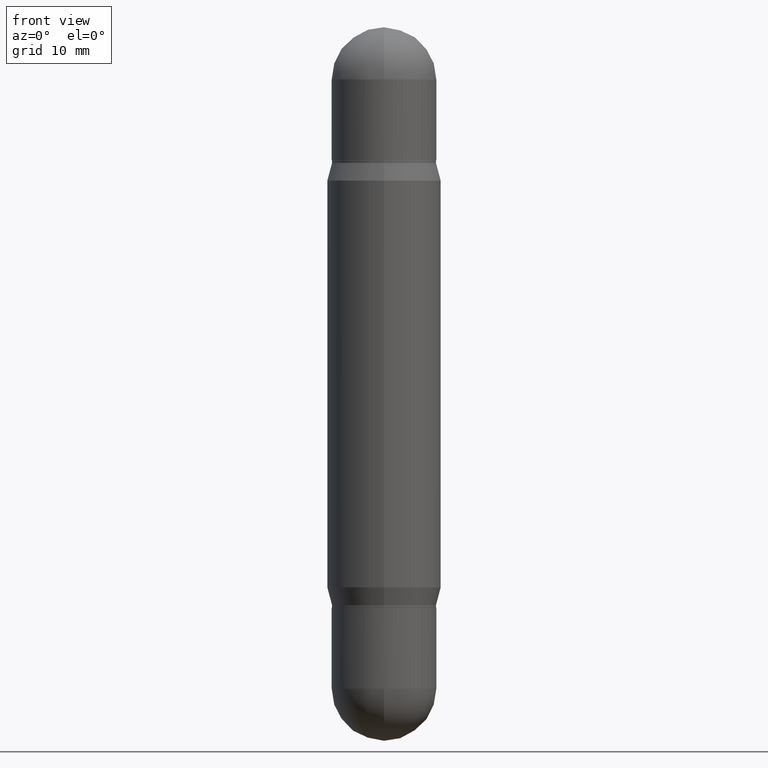
[diagram: clean part render]
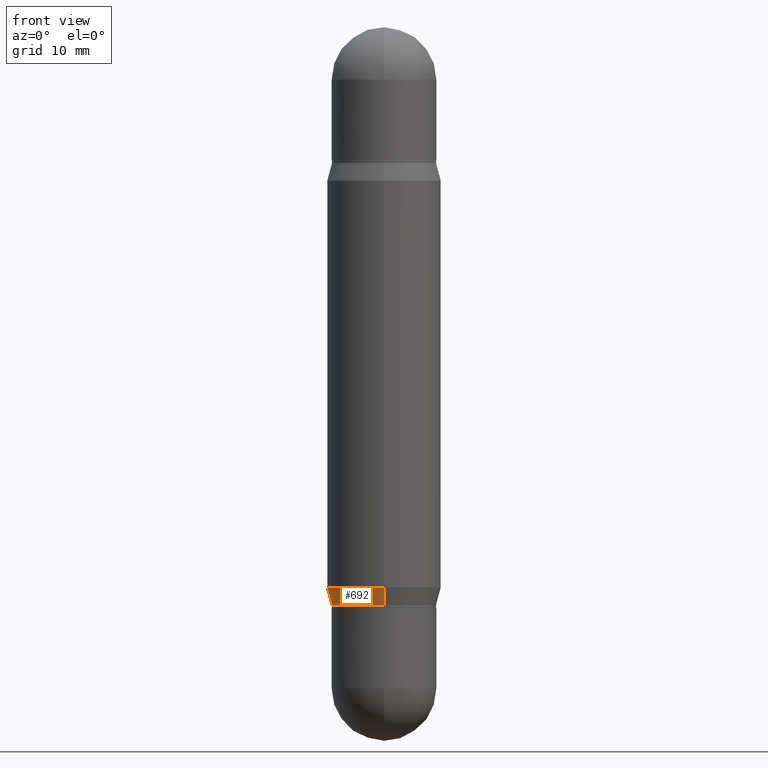
[diagram: same view with one face highlighted and labeled with its STEP entity id]
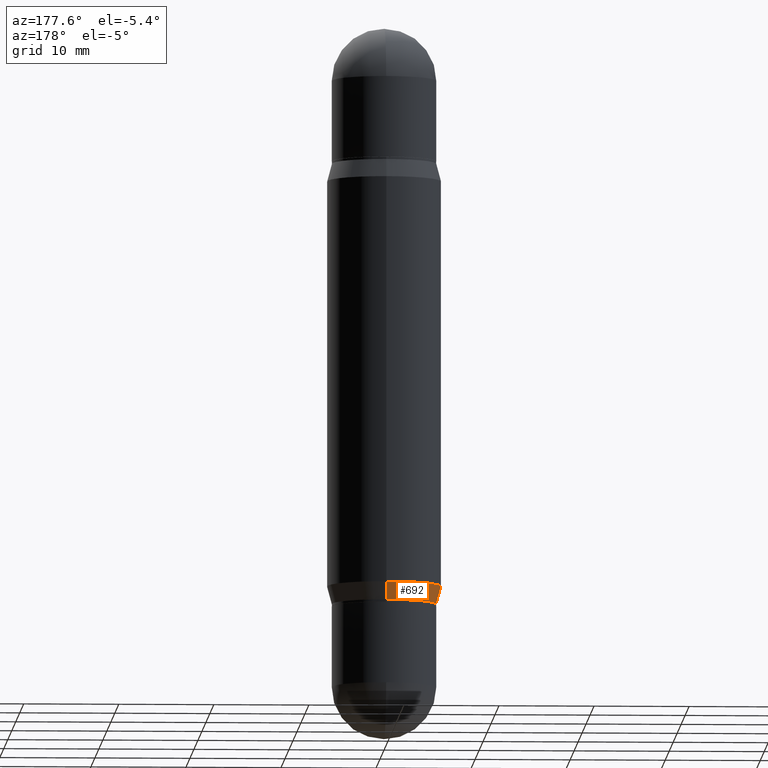
[diagram: same view with one face highlighted and labeled with its STEP entity id]
A machine part, front view. The second image highlights one B-rep face of the part: STEP entity #692.
A second angle (auxiliary view) of the same face is appended — the face is thin or edge-on in the first view.
In plain terms, the highlighted conical surface has half-angle 15 deg.
Its self-contained STEP definition (entity closure, byte-faithful):
#5 = VERTEX_POINT ( 'NONE', #39 ) ;
#19 = DIRECTION ( 'NONE',  ( 1.839019923739608598E-15, 0.2588190451025261241, 0.9659258262890667579 ) ) ;
#39 = CARTESIAN_POINT ( 'NONE',  ( -1.512160567852902447E-15, -0.2165500000000083747, -2.391599999999998172 ) ) ;
#64 = ORIENTED_EDGE ( 'NONE', *, *, #424, .T. ) ;
#105 = CARTESIAN_POINT ( 'NONE',  ( 1.538680294288555275E-15, 0.2165499999999916381, -2.391599999999999948 ) ) ;
#130 = AXIS2_PLACEMENT_3D ( 'NONE', #858, #947, #505 ) ;
#210 = CARTESIAN_POINT ( 'NONE',  ( 5.843738410355426328E-29, -8.357164780017650987E-15, -2.391599999999999060 ) ) ;
#310 = CIRCLE ( 'NONE', #520, 0.2165500000000000203 ) ;
#313 = VECTOR ( 'NONE', #495, 39.37007874015747433 ) ;
#357 = DIRECTION ( 'NONE',  ( -2.443443055007287713E-29, 3.494382329828422132E-15, 1.000000000000000000 ) ) ;
#361 = DIRECTION ( 'NONE',  ( -6.982962677686265133E-15, -1.000000000000000000, 3.784596620176766988E-15 ) ) ;
#365 = EDGE_LOOP ( 'NONE', ( #1115, #64, #784, #366 ) ) ;
#366 = ORIENTED_EDGE ( 'NONE', *, *, #1042, .F. ) ;
#424 = EDGE_CURVE ( 'NONE', #789, #5, #310, .T. ) ;
#431 = LINE ( 'NONE', #954, #313 ) ;
#452 = CONICAL_SURFACE ( 'NONE', #130, 0.2165500000000000203, 0.2617993877991515173 ) ;
#495 = DIRECTION ( 'NONE',  ( -1.807323732225339211E-15, -0.2588190451025194627, 0.9659258262890687563 ) ) ;
#505 = DIRECTION ( 'NONE',  ( -6.982962677686265133E-15, -1.000000000000000000, 3.784596620176766988E-15 ) ) ;
#520 = AXIS2_PLACEMENT_3D ( 'NONE', #210, #357, #361 ) ;
#525 = AXIS2_PLACEMENT_3D ( 'NONE', #616, #721, #955 ) ;
#595 = FACE_OUTER_BOUND ( 'NONE', #365, .T. ) ;
#602 = CARTESIAN_POINT ( 'NONE',  ( 1.620449627073671761E-15, 0.2361999999999919164, -2.318265201631272365 ) ) ;
#615 = CARTESIAN_POINT ( 'NONE',  ( -1.649375784469439333E-15, -0.2362000000000080979, -2.318265201631270589 ) ) ;
#616 = CARTESIAN_POINT ( 'NONE',  ( 5.664549006590998682E-29, -8.100904956436438645E-15, -2.318265201631271477 ) ) ;
#692 = ADVANCED_FACE ( 'NONE', ( #595 ), #452, .T. ) ;
#716 = VERTEX_POINT ( 'NONE', #602 ) ;
#721 = DIRECTION ( 'NONE',  ( -2.443443055007287713E-29, 3.494382329828422132E-15, 1.000000000000000000 ) ) ;
#763 = CIRCLE ( 'NONE', #525, 0.2361999999999999933 ) ;
#783 = VERTEX_POINT ( 'NONE', #615 ) ;
#784 = ORIENTED_EDGE ( 'NONE', *, *, #805, .T. ) ;
#789 = VERTEX_POINT ( 'NONE', #927 ) ;
#805 = EDGE_CURVE ( 'NONE', #5, #783, #431, .T. ) ;
#858 = CARTESIAN_POINT ( 'NONE',  ( 5.843738410355426328E-29, -8.357164780017650987E-15, -2.391599999999999060 ) ) ;
#927 = CARTESIAN_POINT ( 'NONE',  ( 1.538680294288555472E-15, 0.2165499999999916381, -2.391599999999999948 ) ) ;
#947 = DIRECTION ( 'NONE',  ( -2.443443055007287713E-29, 3.494382329828422132E-15, 1.000000000000000000 ) ) ;
#954 = CARTESIAN_POINT ( 'NONE',  ( -1.512160567852902447E-15, -0.2165500000000083747, -2.391599999999998172 ) ) ;
#955 = DIRECTION ( 'NONE',  ( -6.982962677686265922E-15, -1.000000000000000000, 3.469747663417777397E-15 ) ) ;
#975 = LINE ( 'NONE', #105, #996 ) ;
#996 = VECTOR ( 'NONE', #19, 39.37007874015748854 ) ;
#1042 = EDGE_CURVE ( 'NONE', #716, #783, #763, .T. ) ;
#1113 = EDGE_CURVE ( 'NONE', #789, #716, #975, .T. ) ;
#1115 = ORIENTED_EDGE ( 'NONE', *, *, #1113, .F. ) ;